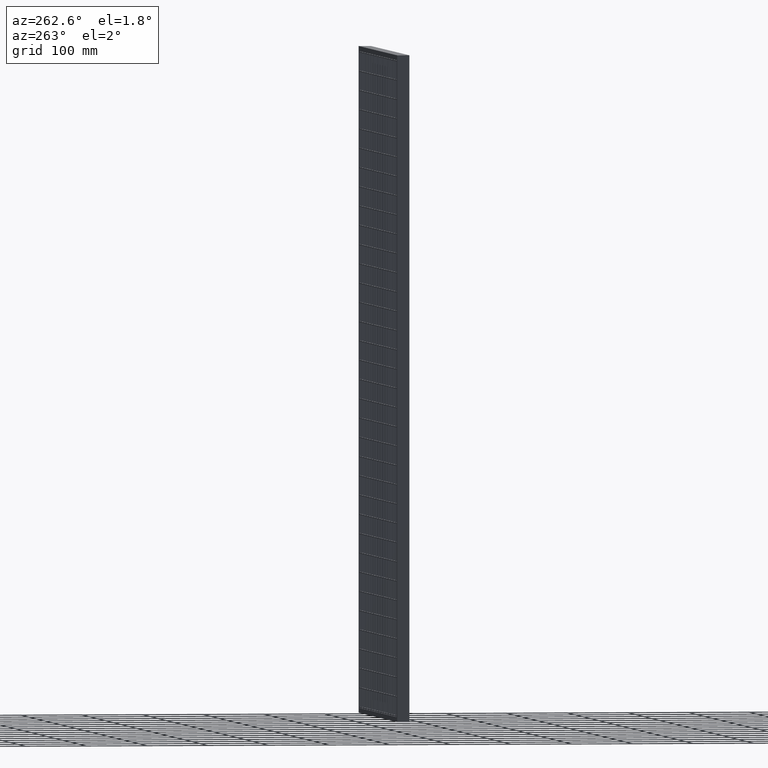
[diagram: clean part render]
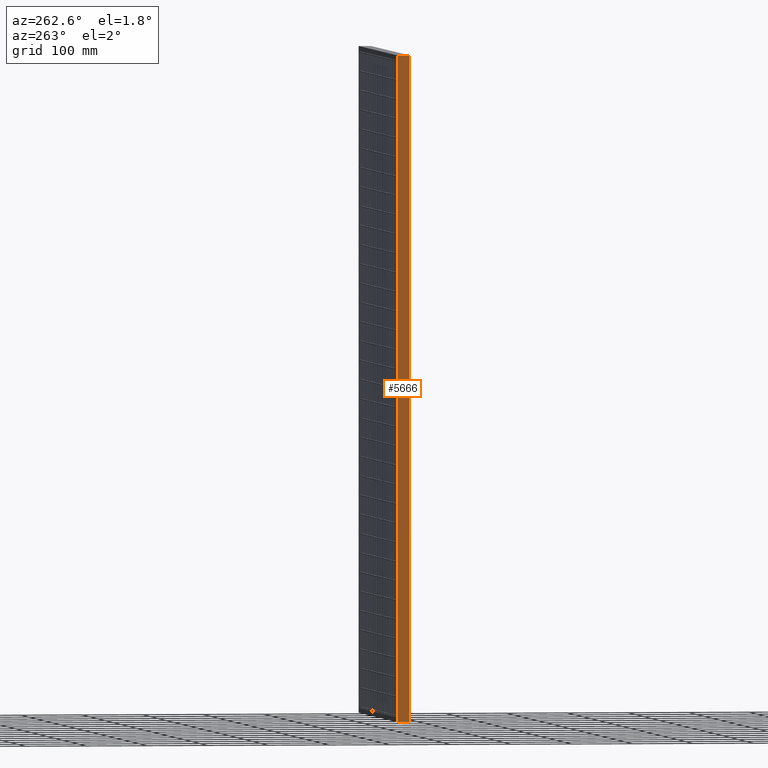
[diagram: same view with one face highlighted and labeled with its STEP entity id]
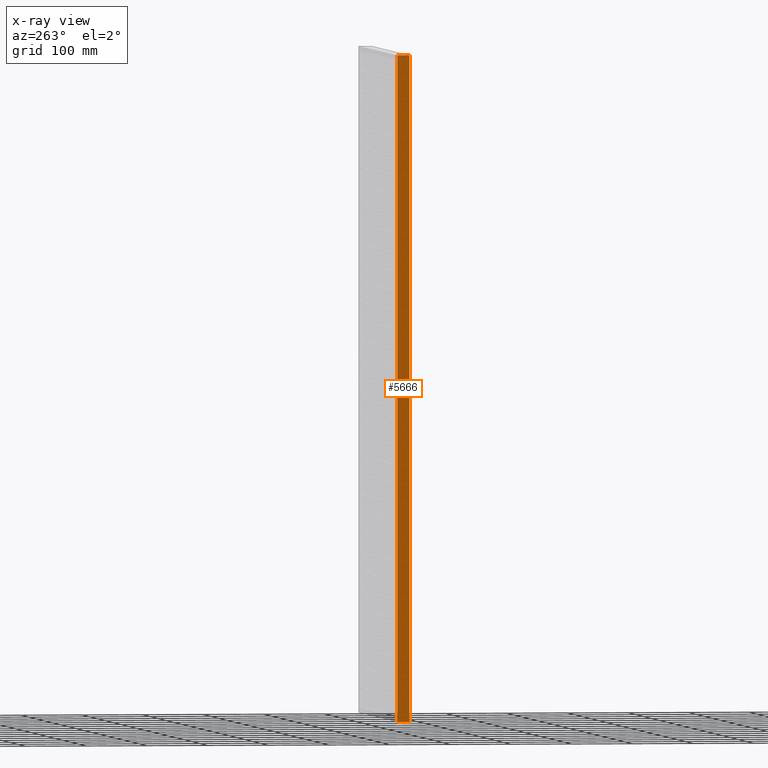
[diagram: x-ray of the same camera — body ghosted, the highlighted face saturated]
A machine part, auxiliary view. The second image highlights one B-rep face of the part: STEP entity #5666.
The next image is the same camera in x-ray: the body ghosted, the highlighted face saturated — about 0% of this face is hidden behind the body in this view.
In plain terms, the highlighted planar face has unit normal (-1, -0, 0).
Its self-contained STEP definition (entity closure, byte-faithful):
#717 = CARTESIAN_POINT ( 'NONE',  ( -3.061616997868386200E-015, 10.00000000000001400, -1090.000000000000000 ) ) ;
#859 = VERTEX_POINT ( 'NONE', #68337 ) ;
#1710 = PLANE ( 'NONE',  #24447 ) ;
#5528 = DIRECTION ( 'NONE',  ( -0.0000000000000000000, -0.0000000000000000000, 1.000000000000000000 ) ) ;
#5666 = ADVANCED_FACE ( 'NONE', ( #7317 ), #1710, .T. ) ;
#5797 = CARTESIAN_POINT ( 'NONE',  ( 1.530808498934191500E-015, -10.00000000000000000, -1.110223024625156500E-013 ) ) ;
#6623 = DIRECTION ( 'NONE',  ( -0.0000000000000000000, -0.0000000000000000000, 1.000000000000000000 ) ) ;
#7317 = FACE_OUTER_BOUND ( 'NONE', #27745, .T. ) ;
#9942 = VERTEX_POINT ( 'NONE', #50912 ) ;
#12557 = CARTESIAN_POINT ( 'NONE',  ( -3.061616997868382300E-015, 10.00000000000000000, -1133.081318457076300 ) ) ;
#14741 = VERTEX_POINT ( 'NONE', #27106 ) ;
#18484 = CARTESIAN_POINT ( 'NONE',  ( -1.020538999289460400E-015, 3.333333333333333900, 0.0000000000000000000 ) ) ;
#19279 = DIRECTION ( 'NONE',  ( 3.061616997868383100E-016, -1.000000000000000000, 3.061616997868383100E-016 ) ) ;
#23637 = EDGE_CURVE ( 'NONE', #9942, #14741, #24341, .T. ) ;
#24341 = LINE ( 'NONE', #717, #79352 ) ;
#24447 = AXIS2_PLACEMENT_3D ( 'NONE', #44788, #25400, #31605 ) ;
#25400 = DIRECTION ( 'NONE',  ( -1.000000000000000000, -3.061616997868383100E-016, 0.0000000000000000000 ) ) ;
#27106 = CARTESIAN_POINT ( 'NONE',  ( 3.061616997868383000E-015, -10.00000000000000000, -1090.000000000000000 ) ) ;
#27745 = EDGE_LOOP ( 'NONE', ( #61263, #35777, #34948, #43018 ) ) ;
#28355 = VERTEX_POINT ( 'NONE', #5797 ) ;
#31605 = DIRECTION ( 'NONE',  ( 3.061616997868383100E-016, -1.000000000000000000, 0.0000000000000000000 ) ) ;
#32199 = VECTOR ( 'NONE', #6623, 1000.000000000000000 ) ;
#34948 = ORIENTED_EDGE ( 'NONE', *, *, #46421, .F. ) ;
#35777 = ORIENTED_EDGE ( 'NONE', *, *, #61989, .T. ) ;
#36087 = LINE ( 'NONE', #12557, #32199 ) ;
#37372 = CARTESIAN_POINT ( 'NONE',  ( 1.530808498934191500E-015, -10.00000000000000000, -1.110223024625156500E-013 ) ) ;
#43018 = ORIENTED_EDGE ( 'NONE', *, *, #23637, .T. ) ;
#44600 = LINE ( 'NONE', #55371, #61985 ) ;
#44788 = CARTESIAN_POINT ( 'NONE',  ( -3.061616997868382300E-015, 10.00000000000000000, -1133.081318457076300 ) ) ;
#45133 = B_SPLINE_CURVE_WITH_KNOTS ( 'NONE', 3,
 ( #37372, #74582, #18484, #50015 ),
 .UNSPECIFIED., .F., .F.,
 ( 4, 4 ),
 ( 0.0000000000000000000, 1.000000000000000000 ),
 .UNSPECIFIED. ) ;
#46421 = EDGE_CURVE ( 'NONE', #9942, #859, #36087, .T. ) ;
#50015 = CARTESIAN_POINT ( 'NONE',  ( 2.220446049250311100E-013, 10.00000000000000200, -2.097981369335576400E-013 ) ) ;
#50912 = CARTESIAN_POINT ( 'NONE',  ( -3.061616997868381900E-015, 10.00000000000000000, -1090.000000000000000 ) ) ;
#55371 = CARTESIAN_POINT ( 'NONE',  ( 3.061616997868383000E-015, -10.00000000000000000, -1133.081318457076300 ) ) ;
#61263 = ORIENTED_EDGE ( 'NONE', *, *, #78467, .T. ) ;
#61985 = VECTOR ( 'NONE', #5528, 1000.000000000000000 ) ;
#61989 = EDGE_CURVE ( 'NONE', #28355, #859, #45133, .T. ) ;
#68337 = CARTESIAN_POINT ( 'NONE',  ( 2.220446049250311100E-013, 10.00000000000000200, -2.097981369335576400E-013 ) ) ;
#74582 = CARTESIAN_POINT ( 'NONE',  ( 1.020538999289461500E-015, -3.333333333333332100, 0.0000000000000000000 ) ) ;
#78467 = EDGE_CURVE ( 'NONE', #14741, #28355, #44600, .T. ) ;
#79352 = VECTOR ( 'NONE', #19279, 1000.000000000000000 ) ;